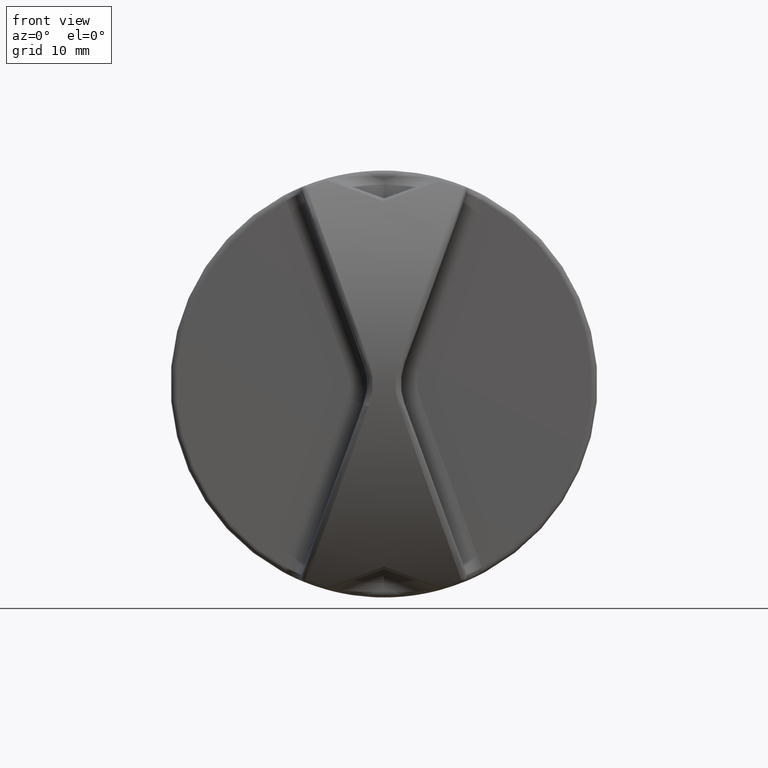
[diagram: clean part render]
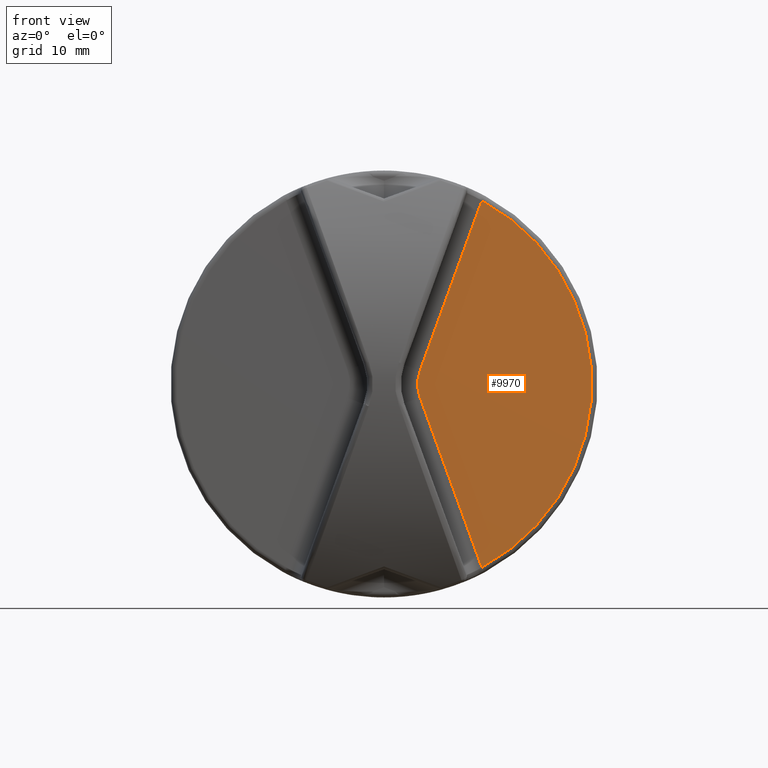
[diagram: same view with one face highlighted and labeled with its STEP entity id]
A machine part, front view. The second image highlights one B-rep face of the part: STEP entity #9970.
In plain terms, the highlighted planar face has unit normal (0, 1, 0).
Its self-contained STEP definition (entity closure, byte-faithful):
#8435 = CARTESIAN_POINT ( 'NONE',  ( -5.000000000000000000, -8.714805876643900700, -16.31876706532735000 ) ) ;
#8436 = CARTESIAN_POINT ( 'NONE',  ( -5.000000000000000000, -3.210526371140304500, -1.197035277903379900 ) ) ;
#8437 = DIRECTION ( 'NONE',  ( 0.0000000000000000000, -0.3420431480644154900, -0.9396842474268599600 ) ) ;
#8438 = VECTOR ( 'NONE', #8437, 1000.000000000000200 ) ;
#8439 = CARTESIAN_POINT ( 'NONE',  ( -5.000000000000000000, 3.656665170712464900, 17.66898134151670200 ) ) ;
#8440 = LINE ( 'NONE', #8439, #8438 ) ;
#8441 = DIRECTION ( 'NONE',  ( 0.0000000000000000000, 0.0000000000000000000, -1.000000000000000000 ) ) ;
#8442 = DIRECTION ( 'NONE',  ( 1.000000000000000000, 0.0000000000000000000, 0.0000000000000000000 ) ) ;
#8443 = CARTESIAN_POINT ( 'NONE',  ( -5.000000000000000000, 0.0000000000000000000, 19.00000000000000000 ) ) ;
#8444 = AXIS2_PLACEMENT_3D ( 'NONE', #8443, #8442, #8441 ) ;
#8445 = PLANE ( 'NONE',  #8444 ) ;
#8446 = FACE_OUTER_BOUND ( 'NONE', #9971, .T. ) ;
#8528 = AXIS2_PLACEMENT_3D ( 'NONE', #8591, #8590, #8589 ) ;
#8529 = CIRCLE ( 'NONE', #8528, 18.50000000000000000 ) ;
#8577 = DIRECTION ( 'NONE',  ( 0.0000000000000000000, -3.469782409826128100E-015, -1.000000000000000000 ) ) ;
#8578 = DIRECTION ( 'NONE',  ( -1.000000000000000000, 0.0000000000000000000, 0.0000000000000000000 ) ) ;
#8579 = CARTESIAN_POINT ( 'NONE',  ( -5.000000000000000000, -6.499103267433519600, -2.986390218861890200E-015 ) ) ;
#8580 = AXIS2_PLACEMENT_3D ( 'NONE', #8579, #8578, #8577 ) ;
#8581 = CIRCLE ( 'NONE', #8580, 3.499661620696884700 ) ;
#8583 = CARTESIAN_POINT ( 'NONE',  ( -5.000000000000000000, -3.210526371162994800, 1.197035277956013800 ) ) ;
#8584 = DIRECTION ( 'NONE',  ( 0.0000000000000000000, 0.3420411722130452000, -0.9396849666303733800 ) ) ;
#8585 = VECTOR ( 'NONE', #8584, 1000.000000000000000 ) ;
#8586 = CARTESIAN_POINT ( 'NONE',  ( -5.000000000000000000, -8.556987704634449800, 15.88529431773159900 ) ) ;
#8587 = LINE ( 'NONE', #8586, #8585 ) ;
#8588 = CARTESIAN_POINT ( 'NONE',  ( -5.000000000000000000, -8.714775728218709700, 16.31878316562999800 ) ) ;
#8589 = DIRECTION ( 'NONE',  ( 0.0000000000000000000, 0.0000000000000000000, -1.000000000000000000 ) ) ;
#8590 = DIRECTION ( 'NONE',  ( -1.000000000000000000, 0.0000000000000000000, 0.0000000000000000000 ) ) ;
#8591 = CARTESIAN_POINT ( 'NONE',  ( -5.000000000000000000, 0.0000000000000000000, 0.0000000000000000000 ) ) ;
#9970 = ADVANCED_FACE ( 'NONE', ( #8446 ), #8445, .F. ) ;
#9971 = EDGE_LOOP ( 'NONE', ( #9972, #10025, #10028, #10031 ) ) ;
#9972 = ORIENTED_EDGE ( 'NONE', *, *, #9973, .T. ) ;
#9973 = EDGE_CURVE ( 'NONE', #9974, #9975, #8440, .T. ) ;
#9974 = VERTEX_POINT ( 'NONE', #8436 ) ;
#9975 = VERTEX_POINT ( 'NONE', #8435 ) ;
#10025 = ORIENTED_EDGE ( 'NONE', *, *, #10026, .T. ) ;
#10026 = EDGE_CURVE ( 'NONE', #9975, #10027, #8529, .T. ) ;
#10027 = VERTEX_POINT ( 'NONE', #8588 ) ;
#10028 = ORIENTED_EDGE ( 'NONE', *, *, #10029, .T. ) ;
#10029 = EDGE_CURVE ( 'NONE', #10027, #10030, #8587, .T. ) ;
#10030 = VERTEX_POINT ( 'NONE', #8583 ) ;
#10031 = ORIENTED_EDGE ( 'NONE', *, *, #10032, .T. ) ;
#10032 = EDGE_CURVE ( 'NONE', #10030, #9974, #8581, .T. ) ;